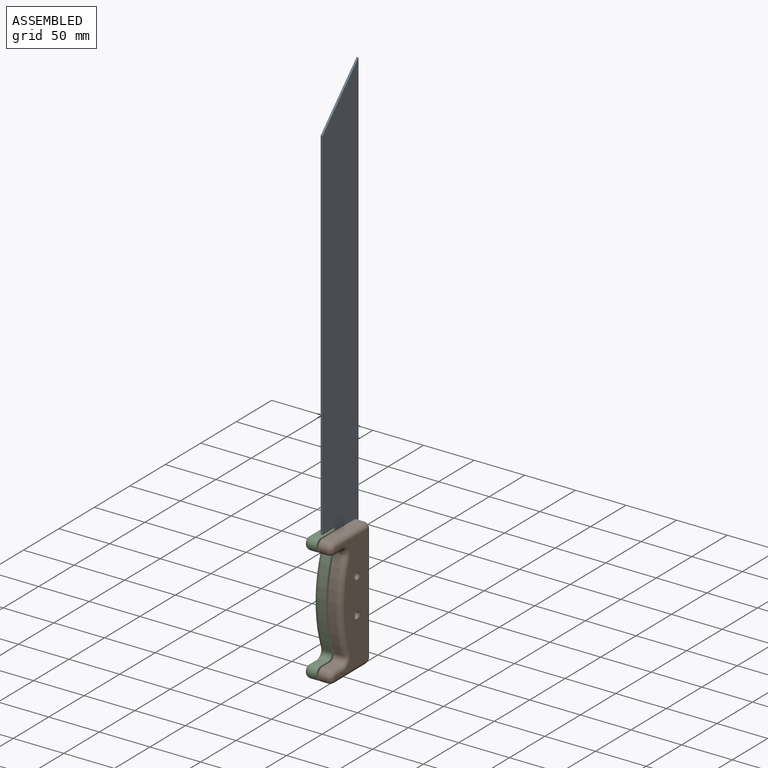
[diagram: assembled view]
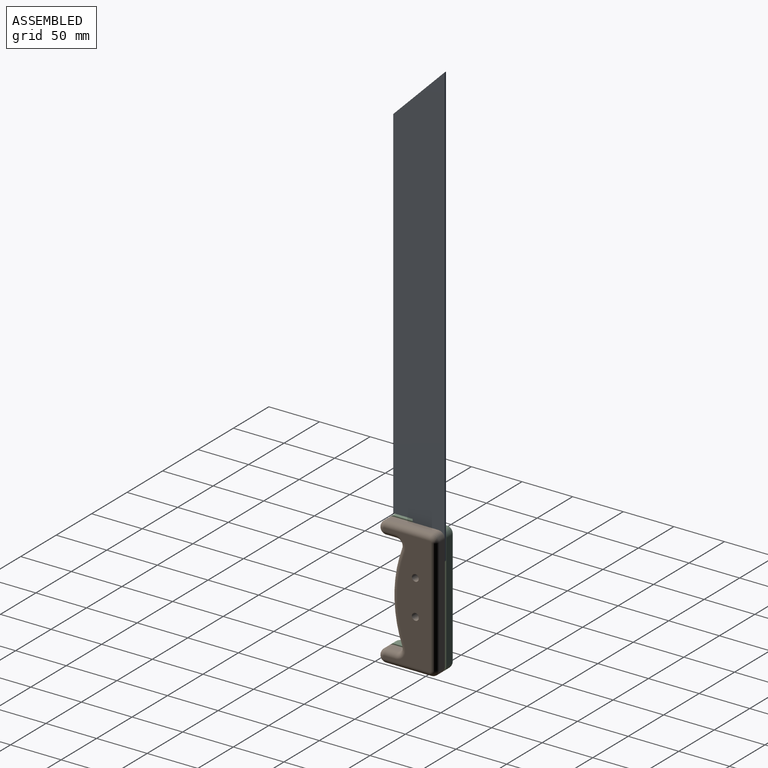
[diagram: assembled view, second angle]
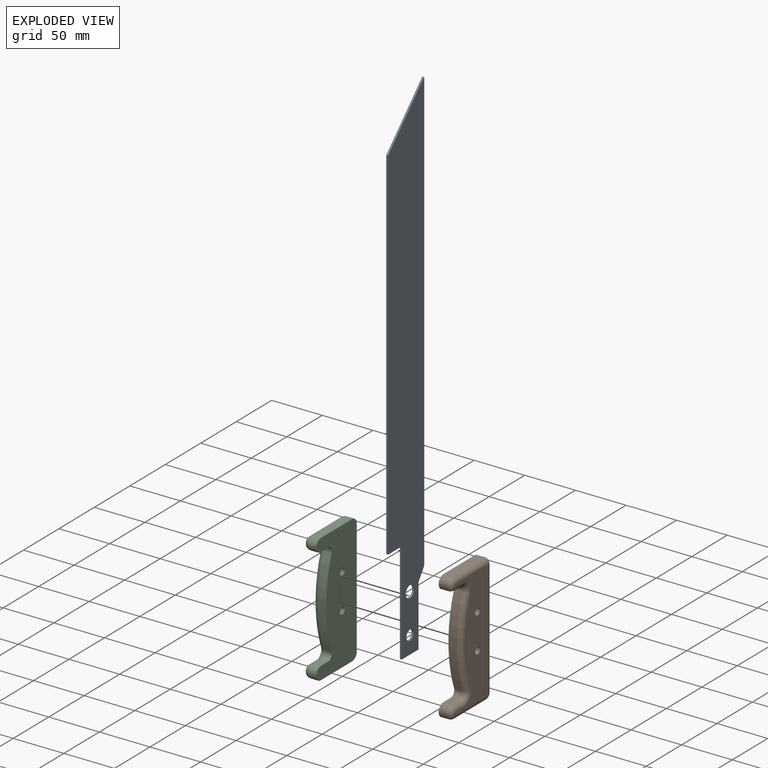
[diagram: exploded view]
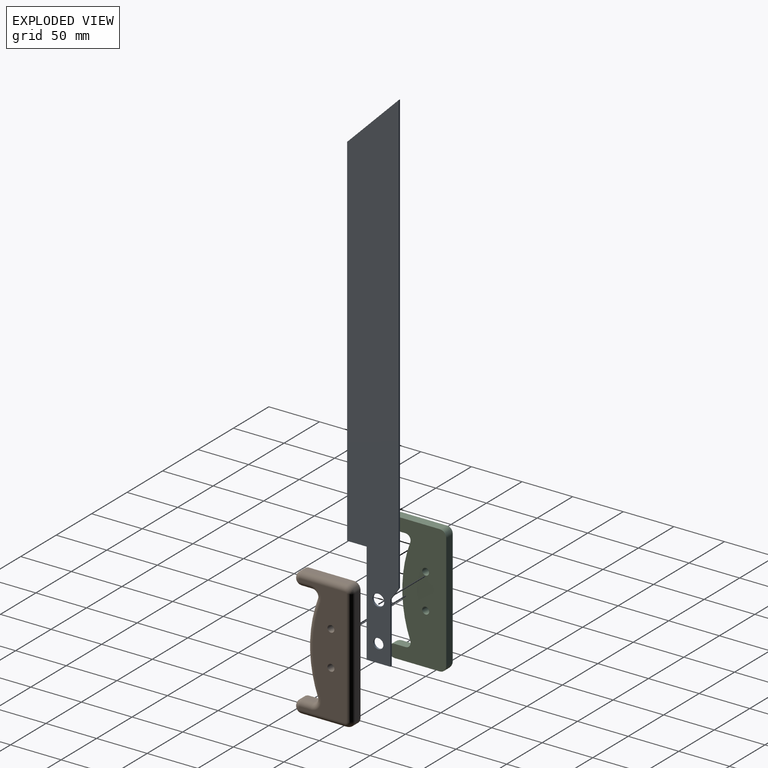
[diagram: exploded view, second angle]
ASSEMBLY  parts=3 mates=2
PART A: 12 faces, bbox 1.9x50.8x508 mm
  f0: plane 508x50.8mm, normal (-1,0,0), area 21863.9mm2, adj f2,f3,f4,f5,f6,f7,f8,f9
  f1: plane 508x50.8mm, normal (1,0,0), area 21863.9mm2, adj f2,f3,f4,f5,f6,f7,f8,f9
  f2: plane 436.26x1.9mm, normal (0,1,0), area 827.8mm2, adj f0,f1,f4,f8
  f3: plane 356.2x1.9mm, normal (0,-1,0), area 675.8mm2, adj f0,f1,f4,f10
  f4: plane 50.8x50.8mm, normal (0,-0.71,0.71), area 136.3mm2, adj f0,f1,f2,f3
  f5: cylinder r=4.97mm len=9.95mm, axis (-1,0,0), area 59.3mm2, adj f0,f1
  f6: cylinder r=5.82mm len=11.64mm, axis (-1,0,0), area 69.4mm2, adj f0,f1
  f7: plane 23.54x1.9mm, normal (0,0,-1), area 44.7mm2, adj f0,f1,f9,f11
  f8: plane 11.73x8.12mm, normal (0,0.82,-0.57), area 27.1mm2, adj f0,f1,f2,f9
  f9: plane 60.01x1.9mm, normal (0,1,0), area 113.9mm2, adj f0,f1,f7,f8
  f10: plane 19.14x1.9mm, normal (0,0,-1), area 36.3mm2, adj f0,f1,f3,f11
  f11: plane 101x1.9mm, normal (0,-1,0), area 191.6mm2, adj f0,f1,f7,f10
PART B: 28 faces, bbox 12.7x57.2x127 mm
  f0: cylinder r=127.14mm len=87.93mm, axis (1,0,0), area 684.1mm2, adj f12,f15,f19,f20
  f1: plane 10.55x7.62mm, normal (0,0,1), area 80.4mm2, adj f2,f12,f20,f24
  f2: cylinder r=6.35mm len=12.7mm, axis (1,0,0), area 152mm2, adj f1,f3,f12,f26
  f3: plane 44.45x7.62mm, normal (0,0,-1), area 338.7mm2, adj f2,f4,f12,f27
  f4: cylinder r=6.35mm len=7.62mm, axis (1,0,0), area 76mm2, adj f3,f5,f12,f25
  f5: plane 114.3x7.62mm, normal (0,1,0), area 871mm2, adj f4,f6,f12,f23
  f6: cylinder r=6.35mm len=7.62mm, axis (1,0,0), area 76mm2, adj f5,f7,f12,f21
  f7: plane 44.45x7.62mm, normal (0,0,1), area 338.7mm2, adj f6,f8,f12,f18
  f8: cylinder r=6.35mm len=12.7mm, axis (1,0,0), area 152mm2, adj f7,f10,f12,f16
  f9: cylinder r=3.36mm len=12.7mm, axis (1,0,0), area 267.9mm2, adj f12,f13
  f10: plane 10.55x7.62mm, normal (0,0,-1), area 80.4mm2, adj f8,f12,f14,f15
  f11: cylinder r=3.44mm len=12.7mm, axis (1,0,0), area 274.7mm2, adj f12,f13
  f12: plane 127x57.15mm, normal (-1,0,0), area 5402.4mm2, adj f0,f1,f2,f3,f4,f5,f6,f7
  f13: plane 116.84x46.99mm, normal (1,0,0), area 3484.7mm2, adj f9,f11,f14,f16,f17,f18,f19,f21
  f14: cylinder r=5.08mm len=10.55mm, axis (0,1,0), area 84.1mm2, adj f10,f13,f16,f17
  f15: cylinder r=5.08mm len=7.62mm, axis (1,0,0), area 74.5mm2, adj f0,f10,f12,f17
  f16: torus R=1.27mm, axis (-1,0,0), area 112.9mm2, adj f8,f13,f14,f18
  f17: torus R=10.16mm, axis (-1,0,0), area 106.3mm2, adj f13,f14,f15,f19
  f18: cylinder r=5.08mm len=44.45mm, axis (0,-1,0), area 354.7mm2, adj f7,f13,f16,f21
  f19: torus R=122.06mm, axis (-1,0,0), area 706mm2, adj f0,f13,f17,f22
  f20: cylinder r=5.08mm len=7.62mm, axis (1,0,0), area 74.5mm2, adj f0,f1,f12,f22
  f21: torus R=1.27mm, axis (-1,0,0), area 56.5mm2, adj f6,f13,f18,f23
  f22: torus R=10.16mm, axis (-1,0,0), area 106.3mm2, adj f13,f19,f20,f24
  f23: cylinder r=5.08mm len=114.3mm, axis (0,0,1), area 912.1mm2, adj f5,f13,f21,f25
  f24: cylinder r=5.08mm len=10.55mm, axis (0,-1,0), area 84.1mm2, adj f1,f13,f22,f26
  f25: torus R=1.27mm, axis (-1,0,0), area 56.5mm2, adj f4,f13,f23,f27
  f26: torus R=1.27mm, axis (-1,0,0), area 112.9mm2, adj f2,f13,f24,f27
  f27: cylinder r=5.08mm len=44.45mm, axis (0,1,0), area 354.7mm2, adj f3,f13,f25,f26
PART C: 28 faces, bbox 12.7x57.2x127 mm
  f0: cylinder r=127.14mm len=87.93mm, axis (-1,0,0), area 684.1mm2, adj f12,f15,f19,f20
  f1: plane 10.55x7.62mm, normal (0,0,1), area 80.4mm2, adj f2,f12,f20,f24
  f2: cylinder r=6.35mm len=12.7mm, axis (-1,0,0), area 152mm2, adj f1,f3,f12,f26
  f3: plane 44.45x7.62mm, normal (0,0,-1), area 338.7mm2, adj f2,f4,f12,f27
  f4: cylinder r=6.35mm len=7.62mm, axis (-1,0,0), area 76mm2, adj f3,f5,f12,f25
  f5: plane 114.3x7.62mm, normal (0,1,0), area 871mm2, adj f4,f6,f12,f23
  f6: cylinder r=6.35mm len=7.62mm, axis (-1,0,0), area 76mm2, adj f5,f7,f12,f21
  f7: plane 44.45x7.62mm, normal (0,0,1), area 338.7mm2, adj f6,f8,f12,f18
  f8: cylinder r=6.35mm len=12.7mm, axis (-1,0,0), area 152mm2, adj f7,f10,f12,f16
  f9: cylinder r=3.36mm len=12.7mm, axis (-1,0,0), area 267.9mm2, adj f12,f13
  f10: plane 10.55x7.62mm, normal (0,0,-1), area 80.4mm2, adj f8,f12,f14,f15
  f11: cylinder r=3.44mm len=12.7mm, axis (-1,0,0), area 274.7mm2, adj f12,f13
  f12: plane 127x57.15mm, normal (1,0,0), area 5402.4mm2, adj f0,f1,f2,f3,f4,f5,f6,f7
  f13: plane 116.84x46.99mm, normal (-1,0,0), area 3484.7mm2, adj f9,f11,f14,f16,f17,f18,f19,f21
  f14: cylinder r=5.08mm len=10.55mm, axis (0,1,0), area 84.1mm2, adj f10,f13,f16,f17
  f15: cylinder r=5.08mm len=7.62mm, axis (-1,0,0), area 74.5mm2, adj f0,f10,f12,f17
  f16: torus R=1.27mm, axis (1,0,0), area 112.9mm2, adj f8,f13,f14,f18
  f17: torus R=10.16mm, axis (1,0,0), area 106.3mm2, adj f13,f14,f15,f19
  f18: cylinder r=5.08mm len=44.45mm, axis (0,-1,0), area 354.7mm2, adj f7,f13,f16,f21
  f19: torus R=122.06mm, axis (1,0,0), area 706mm2, adj f0,f13,f17,f22
  f20: cylinder r=5.08mm len=7.62mm, axis (-1,0,0), area 74.5mm2, adj f0,f1,f12,f22
  f21: torus R=1.27mm, axis (1,0,0), area 56.5mm2, adj f6,f13,f18,f23
  f22: torus R=10.16mm, axis (1,0,0), area 106.3mm2, adj f13,f19,f20,f24
  f23: cylinder r=5.08mm len=114.3mm, axis (0,0,1), area 912.1mm2, adj f5,f13,f21,f25
  f24: cylinder r=5.08mm len=10.55mm, axis (0,-1,0), area 84.1mm2, adj f1,f13,f22,f26
  f25: torus R=1.27mm, axis (1,0,0), area 56.5mm2, adj f4,f13,f23,f27
  f26: torus R=1.27mm, axis (1,0,0), area 112.9mm2, adj f2,f13,f24,f27
  f27: cylinder r=5.08mm len=44.45mm, axis (0,1,0), area 354.7mm2, adj f3,f13,f25,f26
PLACE A at identity fixed
PLACE B t=(-10.8,-3.04,-258.05)mm
PLACE C t=(-12.7,-3.04,-258.05)mm
MATE fastened B.f9 <-> A.f6  axis (-1,0,0) through (1.9,0,-246.15)mm
MATE fastened C.f9 <-> A.f6  axis (1,0,0) through (0,0,-246.15)mm
